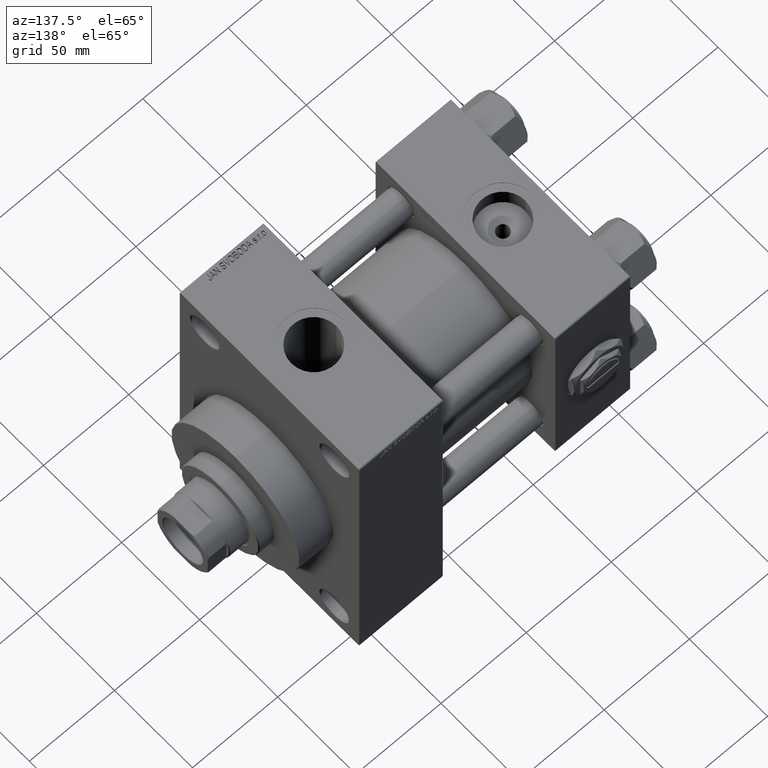
[diagram: clean part render]
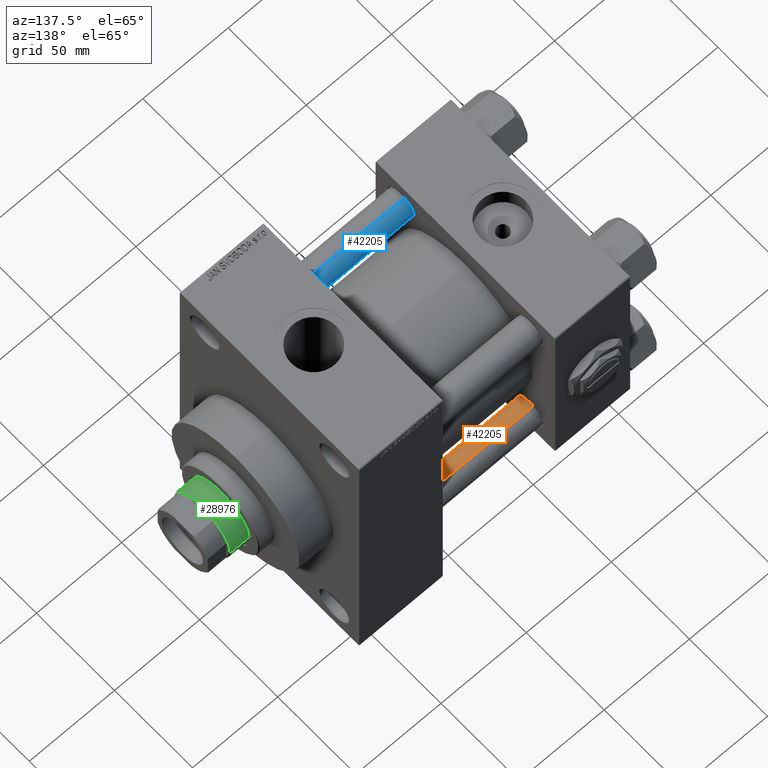
[diagram: same view with three faces highlighted in distinct colors, each labeled with its STEP entity id]
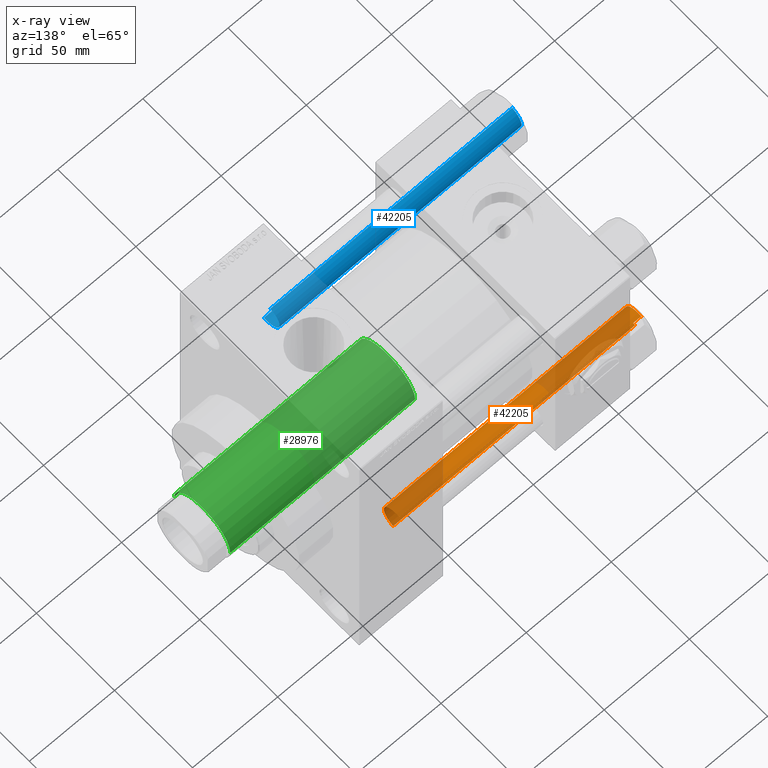
[diagram: x-ray of the same camera — body ghosted, the three highlighted faces saturated]
A machine part, auxiliary view with three faces highlighted in distinct colors.
The next image is the same camera in x-ray (body ghosted, the three faces saturated) — at least one of them is partly hidden behind the body in this view.
Their STEP definitions:

[orange] entity #42205 — the highlighted cylindrical surface (edge-blend (fillet) strip) has radius 8 mm, axis along (1, -0, 0).
#232 = DIRECTION ( 'NONE',  ( -0.000000000000000000, -0.000000000000000000, -1.000000000000000000 ) ) ;
#1480 = DIRECTION ( 'NONE',  ( 1.000000000000000000, 0.000000000000000000, 0.000000000000000000 ) ) ;
#1502 = EDGE_CURVE ( 'NONE', #36449, #33931, #2183, .T. ) ;
#1586 = ORIENTED_EDGE ( 'NONE', *, *, #1502, .F. ) ;
#2183 = LINE ( 'NONE', #47034, #10349 ) ;
#5360 = ORIENTED_EDGE ( 'NONE', *, *, #20387, .T. ) ;
#7487 = CARTESIAN_POINT ( 'NONE',  ( -8.000000000000000000, 0.000000000000000000, 143.0000000000000000 ) ) ;
#10349 = VECTOR ( 'NONE', #24064, 1000.000000000000000 ) ;
#11052 = DIRECTION ( 'NONE',  ( -1.000000000000000000, 0.000000000000000000, 0.000000000000000000 ) ) ;
#12773 = DIRECTION ( 'NONE',  ( -0.000000000000000000, -0.000000000000000000, 1.000000000000000000 ) ) ;
#14630 = AXIS2_PLACEMENT_3D ( 'NONE', #35272, #12773, #1480 ) ;
#17228 = ORIENTED_EDGE ( 'NONE', *, *, #38670, .T. ) ;
#17782 = AXIS2_PLACEMENT_3D ( 'NONE', #33091, #26322, #11052 ) ;
#18026 = CARTESIAN_POINT ( 'NONE',  ( 0.000000000000000000, 0.000000000000000000, 142.4999999999999716 ) ) ;
#19152 = VECTOR ( 'NONE', #232, 1000.000000000000000 ) ;
#20387 = EDGE_CURVE ( 'NONE', #38036, #33931, #36171, .T. ) ;
#22150 = CIRCLE ( 'NONE', #46900, 8.000000000000000000 ) ;
#23337 = CARTESIAN_POINT ( 'NONE',  ( -8.000000000000000000, 0.000000000000000000, 142.4999999999999716 ) ) ;
#24064 = DIRECTION ( 'NONE',  ( -0.000000000000000000, -0.000000000000000000, -1.000000000000000000 ) ) ;
#25277 = DIRECTION ( 'NONE',  ( 1.000000000000000000, 0.000000000000000000, 0.000000000000000000 ) ) ;
#26322 = DIRECTION ( 'NONE',  ( -0.000000000000000000, -0.000000000000000000, -1.000000000000000000 ) ) ;
#29255 = VERTEX_POINT ( 'NONE', #23337 ) ;
#30261 = LINE ( 'NONE', #7487, #19152 ) ;
#31116 = CARTESIAN_POINT ( 'NONE',  ( 8.000000000000000000, 9.797174393178825657E-16, 0.4999999999999726885 ) ) ;
#32524 = DIRECTION ( 'NONE',  ( 0.000000000000000000, 0.000000000000000000, -1.000000000000000000 ) ) ;
#33091 = CARTESIAN_POINT ( 'NONE',  ( 0.000000000000000000, 0.000000000000000000, 143.0000000000000000 ) ) ;
#33293 = EDGE_CURVE ( 'NONE', #36449, #29255, #22150, .T. ) ;
#33571 = FACE_OUTER_BOUND ( 'NONE', #47661, .T. ) ;
#33931 = VERTEX_POINT ( 'NONE', #31116 ) ;
#35272 = CARTESIAN_POINT ( 'NONE',  ( 0.000000000000000000, 0.000000000000000000, 0.4999999999999726885 ) ) ;
#36171 = CIRCLE ( 'NONE', #14630, 8.000000000000000000 ) ;
#36449 = VERTEX_POINT ( 'NONE', #44139 ) ;
#38036 = VERTEX_POINT ( 'NONE', #45650 ) ;
#38670 = EDGE_CURVE ( 'NONE', #29255, #38036, #30261, .T. ) ;
#40662 = ORIENTED_EDGE ( 'NONE', *, *, #33293, .T. ) ;
#41059 = CYLINDRICAL_SURFACE ( 'NONE', #17782, 8.000000000000000000 ) ;
#42205 = ADVANCED_FACE ( 'NONE', ( #33571 ), #41059, .T. ) ;
#44139 = CARTESIAN_POINT ( 'NONE',  ( 8.000000000000000000, 9.797174393178825657E-16, 142.4999999999999716 ) ) ;
#45650 = CARTESIAN_POINT ( 'NONE',  ( -8.000000000000000000, 0.000000000000000000, 0.4999999999999726885 ) ) ;
#46900 = AXIS2_PLACEMENT_3D ( 'NONE', #18026, #32524, #25277 ) ;
#47034 = CARTESIAN_POINT ( 'NONE',  ( 8.000000000000000000, 9.797174393178825657E-16, 143.0000000000000000 ) ) ;
#47661 = EDGE_LOOP ( 'NONE', ( #1586, #40662, #17228, #5360 ) ) ;

[blue] entity #42205 — the highlighted cylindrical surface (edge-blend (fillet) strip) has radius 8 mm, axis along (1, 0, 0).
#232 = DIRECTION ( 'NONE',  ( -0.000000000000000000, -0.000000000000000000, -1.000000000000000000 ) ) ;
#1480 = DIRECTION ( 'NONE',  ( 1.000000000000000000, 0.000000000000000000, 0.000000000000000000 ) ) ;
#1502 = EDGE_CURVE ( 'NONE', #36449, #33931, #2183, .T. ) ;
#1586 = ORIENTED_EDGE ( 'NONE', *, *, #1502, .F. ) ;
#2183 = LINE ( 'NONE', #47034, #10349 ) ;
#5360 = ORIENTED_EDGE ( 'NONE', *, *, #20387, .T. ) ;
#7487 = CARTESIAN_POINT ( 'NONE',  ( -8.000000000000000000, 0.000000000000000000, 143.0000000000000000 ) ) ;
#10349 = VECTOR ( 'NONE', #24064, 1000.000000000000000 ) ;
#11052 = DIRECTION ( 'NONE',  ( -1.000000000000000000, 0.000000000000000000, 0.000000000000000000 ) ) ;
#12773 = DIRECTION ( 'NONE',  ( -0.000000000000000000, -0.000000000000000000, 1.000000000000000000 ) ) ;
#14630 = AXIS2_PLACEMENT_3D ( 'NONE', #35272, #12773, #1480 ) ;
#17228 = ORIENTED_EDGE ( 'NONE', *, *, #38670, .T. ) ;
#17782 = AXIS2_PLACEMENT_3D ( 'NONE', #33091, #26322, #11052 ) ;
#18026 = CARTESIAN_POINT ( 'NONE',  ( 0.000000000000000000, 0.000000000000000000, 142.4999999999999716 ) ) ;
#19152 = VECTOR ( 'NONE', #232, 1000.000000000000000 ) ;
#20387 = EDGE_CURVE ( 'NONE', #38036, #33931, #36171, .T. ) ;
#22150 = CIRCLE ( 'NONE', #46900, 8.000000000000000000 ) ;
#23337 = CARTESIAN_POINT ( 'NONE',  ( -8.000000000000000000, 0.000000000000000000, 142.4999999999999716 ) ) ;
#24064 = DIRECTION ( 'NONE',  ( -0.000000000000000000, -0.000000000000000000, -1.000000000000000000 ) ) ;
#25277 = DIRECTION ( 'NONE',  ( 1.000000000000000000, 0.000000000000000000, 0.000000000000000000 ) ) ;
#26322 = DIRECTION ( 'NONE',  ( -0.000000000000000000, -0.000000000000000000, -1.000000000000000000 ) ) ;
#29255 = VERTEX_POINT ( 'NONE', #23337 ) ;
#30261 = LINE ( 'NONE', #7487, #19152 ) ;
#31116 = CARTESIAN_POINT ( 'NONE',  ( 8.000000000000000000, 9.797174393178825657E-16, 0.4999999999999726885 ) ) ;
#32524 = DIRECTION ( 'NONE',  ( 0.000000000000000000, 0.000000000000000000, -1.000000000000000000 ) ) ;
#33091 = CARTESIAN_POINT ( 'NONE',  ( 0.000000000000000000, 0.000000000000000000, 143.0000000000000000 ) ) ;
#33293 = EDGE_CURVE ( 'NONE', #36449, #29255, #22150, .T. ) ;
#33571 = FACE_OUTER_BOUND ( 'NONE', #47661, .T. ) ;
#33931 = VERTEX_POINT ( 'NONE', #31116 ) ;
#35272 = CARTESIAN_POINT ( 'NONE',  ( 0.000000000000000000, 0.000000000000000000, 0.4999999999999726885 ) ) ;
#36171 = CIRCLE ( 'NONE', #14630, 8.000000000000000000 ) ;
#36449 = VERTEX_POINT ( 'NONE', #44139 ) ;
#38036 = VERTEX_POINT ( 'NONE', #45650 ) ;
#38670 = EDGE_CURVE ( 'NONE', #29255, #38036, #30261, .T. ) ;
#40662 = ORIENTED_EDGE ( 'NONE', *, *, #33293, .T. ) ;
#41059 = CYLINDRICAL_SURFACE ( 'NONE', #17782, 8.000000000000000000 ) ;
#42205 = ADVANCED_FACE ( 'NONE', ( #33571 ), #41059, .T. ) ;
#44139 = CARTESIAN_POINT ( 'NONE',  ( 8.000000000000000000, 9.797174393178825657E-16, 142.4999999999999716 ) ) ;
#45650 = CARTESIAN_POINT ( 'NONE',  ( -8.000000000000000000, 0.000000000000000000, 0.4999999999999726885 ) ) ;
#46900 = AXIS2_PLACEMENT_3D ( 'NONE', #18026, #32524, #25277 ) ;
#47034 = CARTESIAN_POINT ( 'NONE',  ( 8.000000000000000000, 9.797174393178825657E-16, 143.0000000000000000 ) ) ;
#47661 = EDGE_LOOP ( 'NONE', ( #1586, #40662, #17228, #5360 ) ) ;

[green] entity #28976 — the highlighted cylindrical surface (partial cylindrical patch) has radius 18 mm, axis along (-1, 0, 0).
#2082 = DIRECTION ( 'NONE',  ( -1.000000000000000000, 0.000000000000000000, 0.000000000000000000 ) ) ;
#2704 = DIRECTION ( 'NONE',  ( 1.000000000000000000, 0.000000000000000000, 0.000000000000000000 ) ) ;
#5352 = DIRECTION ( 'NONE',  ( -0.000000000000000000, -0.000000000000000000, -1.000000000000000000 ) ) ;
#5507 = CARTESIAN_POINT ( 'NONE',  ( -18.00000000000000000, 0.000000000000000000, 154.4999999999999716 ) ) ;
#8499 = ORIENTED_EDGE ( 'NONE', *, *, #30421, .T. ) ;
#8555 = AXIS2_PLACEMENT_3D ( 'NONE', #13366, #5352, #2082 ) ;
#9089 = VERTEX_POINT ( 'NONE', #31417 ) ;
#9852 = CIRCLE ( 'NONE', #12272, 18.00000000000000000 ) ;
#11708 = VERTEX_POINT ( 'NONE', #22473 ) ;
#12272 = AXIS2_PLACEMENT_3D ( 'NONE', #13986, #40707, #2704 ) ;
#12664 = EDGE_CURVE ( 'NONE', #32599, #9089, #22484, .T. ) ;
#13366 = CARTESIAN_POINT ( 'NONE',  ( 0.000000000000000000, 0.000000000000000000, 155.0000000000000000 ) ) ;
#13755 = DIRECTION ( 'NONE',  ( -0.000000000000000000, -0.000000000000000000, -1.000000000000000000 ) ) ;
#13986 = CARTESIAN_POINT ( 'NONE',  ( 0.000000000000000000, 0.000000000000000000, 46.00000000000000000 ) ) ;
#14988 = CARTESIAN_POINT ( 'NONE',  ( 18.00000000000000000, 2.204364238465235428E-15, 155.0000000000000000 ) ) ;
#16784 = LINE ( 'NONE', #32024, #18871 ) ;
#18871 = VECTOR ( 'NONE', #13755, 1000.000000000000000 ) ;
#19924 = DIRECTION ( 'NONE',  ( 0.000000000000000000, 0.000000000000000000, -1.000000000000000000 ) ) ;
#20300 = EDGE_LOOP ( 'NONE', ( #32240, #38799, #8499, #31164 ) ) ;
#22473 = CARTESIAN_POINT ( 'NONE',  ( -18.00000000000000000, 0.000000000000000000, 46.00000000000000000 ) ) ;
#22484 = LINE ( 'NONE', #14988, #33645 ) ;
#24282 = CIRCLE ( 'NONE', #34651, 18.00000000000000000 ) ;
#24386 = FACE_OUTER_BOUND ( 'NONE', #20300, .T. ) ;
#25125 = CYLINDRICAL_SURFACE ( 'NONE', #8555, 18.00000000000000000 ) ;
#28976 = ADVANCED_FACE ( 'NONE', ( #24386 ), #25125, .T. ) ;
#30421 = EDGE_CURVE ( 'NONE', #38394, #11708, #16784, .T. ) ;
#31164 = ORIENTED_EDGE ( 'NONE', *, *, #47555, .T. ) ;
#31417 = CARTESIAN_POINT ( 'NONE',  ( 18.00000000000000000, 2.204364238465235428E-15, 46.00000000000000000 ) ) ;
#32024 = CARTESIAN_POINT ( 'NONE',  ( -18.00000000000000000, 0.000000000000000000, 155.0000000000000000 ) ) ;
#32240 = ORIENTED_EDGE ( 'NONE', *, *, #12664, .F. ) ;
#32599 = VERTEX_POINT ( 'NONE', #49222 ) ;
#33645 = VECTOR ( 'NONE', #37975, 1000.000000000000000 ) ;
#34651 = AXIS2_PLACEMENT_3D ( 'NONE', #34922, #19924, #35166 ) ;
#34922 = CARTESIAN_POINT ( 'NONE',  ( 0.000000000000000000, 0.000000000000000000, 154.4999999999999716 ) ) ;
#35166 = DIRECTION ( 'NONE',  ( 1.000000000000000000, 0.000000000000000000, 0.000000000000000000 ) ) ;
#37975 = DIRECTION ( 'NONE',  ( -0.000000000000000000, -0.000000000000000000, -1.000000000000000000 ) ) ;
#38394 = VERTEX_POINT ( 'NONE', #5507 ) ;
#38799 = ORIENTED_EDGE ( 'NONE', *, *, #45119, .T. ) ;
#40707 = DIRECTION ( 'NONE',  ( 0.000000000000000000, 0.000000000000000000, 1.000000000000000000 ) ) ;
#45119 = EDGE_CURVE ( 'NONE', #32599, #38394, #24282, .T. ) ;
#47555 = EDGE_CURVE ( 'NONE', #11708, #9089, #9852, .T. ) ;
#49222 = CARTESIAN_POINT ( 'NONE',  ( 18.00000000000000000, 2.204364238465235428E-15, 154.4999999999999716 ) ) ;